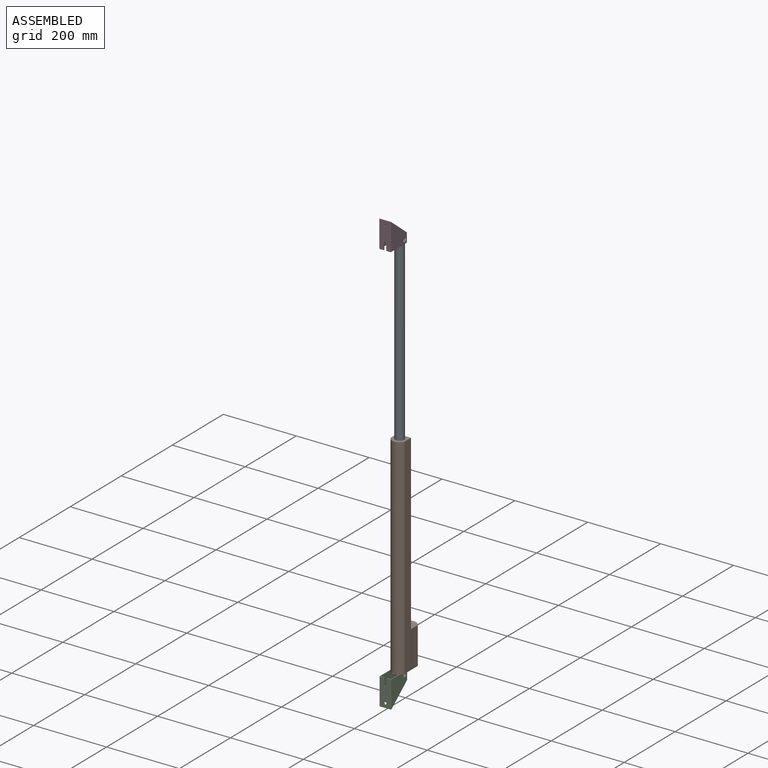
[diagram: assembled view]
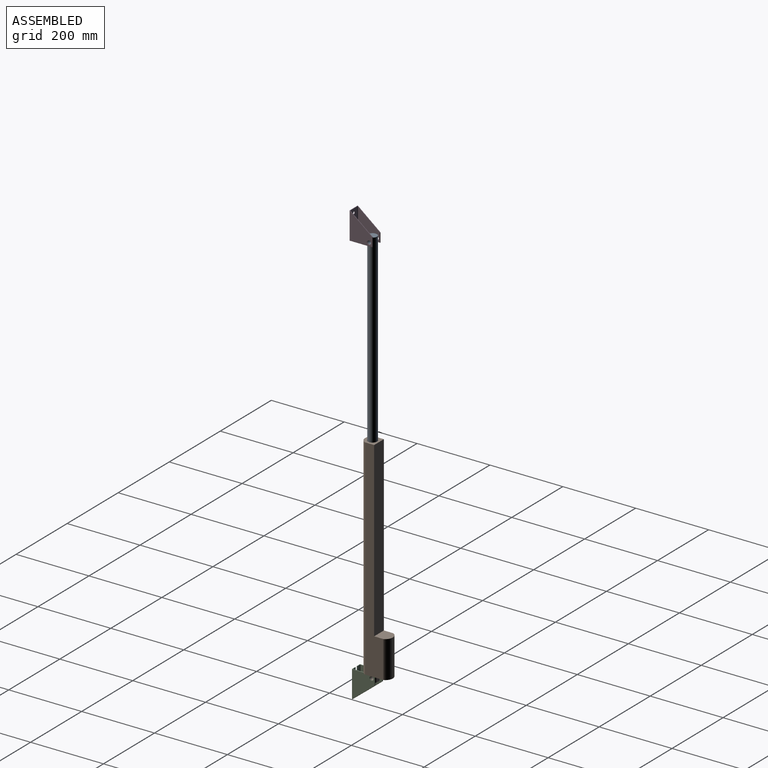
[diagram: assembled view, second angle]
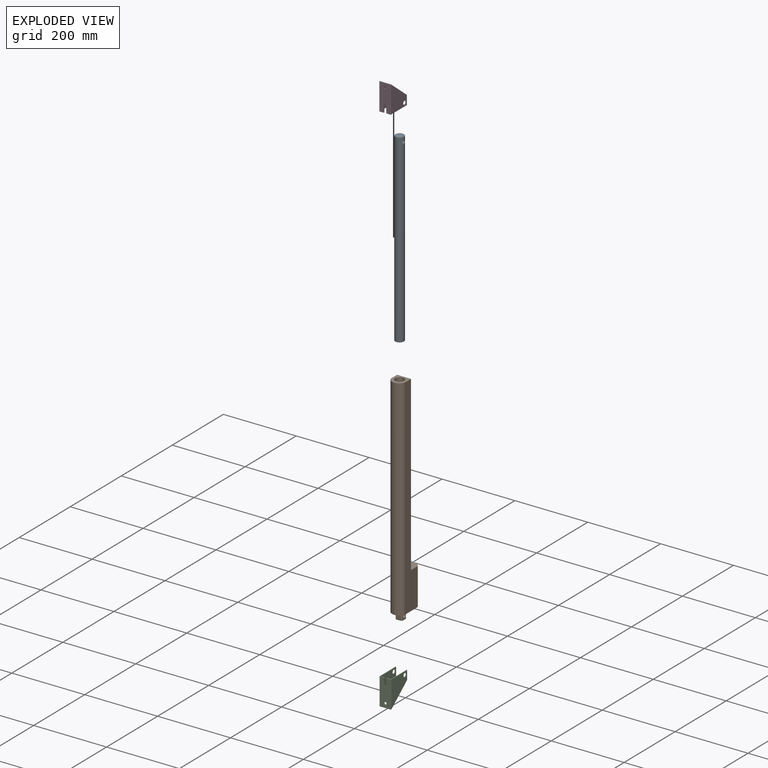
[diagram: exploded view]
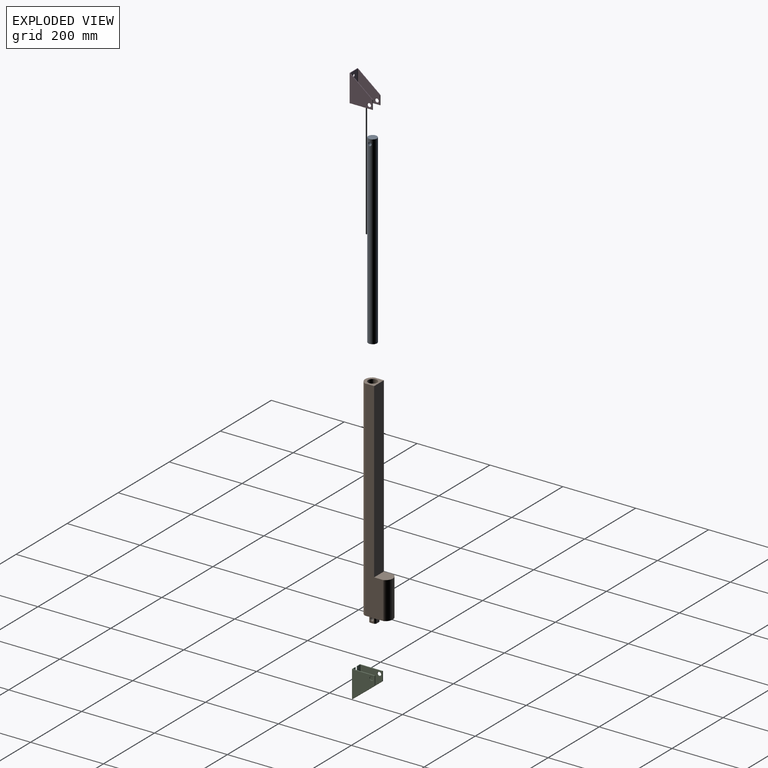
[diagram: exploded view, second angle]
ASSEMBLY  parts=4 mates=3
PART A: 4 faces, bbox 24x24x508 mm
  f0: cylinder r=12mm len=508mm, axis (0,0,-1), area 38156.9mm2, adj f1,f2,f3
  f1: plane 24x24mm, normal (0,0,1), area 452.4mm2, adj f0
  f2: plane 24x24mm, normal (0,0,-1), area 452.4mm2, adj f0
  f3: cylinder r=4.76mm len=24mm, axis (-1,0,0), area 689mm2, adj f0
PART B: 20 faces, bbox 38.1x76.2x595 mm
  f0: plane 38.1x38.1mm, normal (0,0,1), area 1317.4mm2, adj f2,f3,f5,f16
  f1: plane 76.2x38.1mm, normal (0,0,-1), area 2292.1mm2, adj f2,f3,f4,f5,f6,f7,f8,f9
  f2: cylinder r=20.64mm len=101.6mm, axis (0,0,-1), area 4931.6mm2, adj f0,f1,f3,f5
  f3: plane 575.95x50.8mm, normal (-1,0,0), area 17209.6mm2, adj f0,f1,f2,f4,f16,f17
  f4: cylinder r=20.64mm len=575.95mm, axis (0,0,-1), area 27956.1mm2, adj f1,f3,f5,f17
  f5: plane 575.95x50.8mm, normal (1,0,0), area 17209.6mm2, adj f0,f1,f2,f4,f16,f17
  f6: plane 19.05x3.18mm, normal (0.71,-0.71,0), area 85.5mm2, adj f1,f7,f13,f14
  f7: plane 19.05x12.7mm, normal (0,-1,0), area 241.9mm2, adj f1,f6,f8,f14
  f8: plane 19.05x3.18mm, normal (-0.71,-0.71,0), area 85.5mm2, adj f1,f7,f9,f14
  f9: plane 19.05x12.7mm, normal (-1,0,0), area 170.7mm2, adj f1,f8,f10,f14,f15
  f10: plane 19.05x3.18mm, normal (-0.71,0.71,0), area 85.5mm2, adj f1,f9,f11,f14
  f11: plane 19.05x12.7mm, normal (0,1,0), area 241.9mm2, adj f1,f10,f12,f14
  f12: plane 19.05x3.18mm, normal (0.71,0.71,0), area 85.5mm2, adj f1,f11,f13,f14
  f13: plane 19.05x12.7mm, normal (1,0,0), area 170.7mm2, adj f1,f6,f12,f14,f15
  f14: plane 19.05x19.05mm, normal (0,0,-1), area 342.7mm2, adj f6,f7,f8,f9,f10,f11,f12,f13
  f15: cylinder r=4.76mm len=19.05mm, axis (1,0,0), area 570mm2, adj f9,f13
  f16: plane 474.35x38.1mm, normal (0,1,0), area 18072.5mm2, adj f0,f3,f5,f17
  f17: plane 38.1x38.1mm, normal (0,0,1), area 826.5mm2, adj f3,f4,f5,f16,f18
  f18: cylinder r=12.5mm len=393.7mm, axis (0,0,1), area 30921.1mm2, adj f17,f19
  f19: plane 25x25mm, normal (0,0,1), area 490.9mm2, adj f18
PART C: 37 faces, bbox 31.8x63.5x75.3 mm
  f0: cylinder r=0.79mm len=11.91mm, axis (-1,0,0), area 27.7mm2, adj f2,f5,f10,f15,f17,f35
  f1: plane 1.59x1.59mm, normal (0,0,-1), area 0.5mm2, adj f16,f24,f25
  f2: plane 1.59x1.59mm, normal (0,0,-1), area 0.5mm2, adj f0,f13,f17
  f3: plane 1.59x1.59mm, normal (0,0.62,0.78), area 0.7mm2, adj f27,f31,f32
  f4: plane 1.59x1.59mm, normal (0,0.62,0.78), area 0.7mm2, adj f18,f26,f27
  f5: plane 73.75x30.16mm, normal (0,-1,0), area 2061.2mm2, adj f0,f16,f19,f23,f27,f33,f34,f35
  f6: plane 73.75x61.91mm, normal (1,0,0), area 2936.1mm2, adj f12,f13,f14,f18,f19
  f7: plane 73.75x61.91mm, normal (-1,0,0), area 2936.1mm2, adj f11,f23,f24,f29,f31
  f8: plane 72.48x60.33mm, normal (1,0,0), area 2820mm2, adj f11,f24,f29,f30,f31
  f9: plane 72.48x60.33mm, normal (-1,0,0), area 2820mm2, adj f12,f13,f14,f18,f21
  f10: plane 73.75x26.99mm, normal (0,1,0), area 1827mm2, adj f0,f16,f21,f27,f30,f33,f34,f35
  f11: torus R=5.56mm, axis (1,0,0), area 79.1mm2, adj f7,f8
  f12: torus R=5.56mm, axis (1,0,0), area 79.1mm2, adj f6,f9
  f13: cylinder r=0.79mm len=62.71mm, axis (0,-1,0), area 153.7mm2, adj f2,f6,f9,f14,f15,f17
  f14: cylinder r=0.79mm len=25.4mm, axis (0,0,-1), area 62.3mm2, adj f6,f9,f13,f18
  f15: sphere r=0.79mm, area 1mm2, adj f0,f13,f19
  f16: cylinder r=0.79mm len=11.91mm, axis (-1,0,0), area 27.7mm2, adj f1,f5,f10,f20,f25,f34
  f17: torus R=1.59mm, axis (0,0,1), area 2.1mm2, adj f0,f2,f13,f21
  f18: cylinder r=0.79mm len=62.71mm, axis (0,0.78,-0.62), area 195.8mm2, adj f4,f6,f9,f14,f22,f26
  f19: cylinder r=0.79mm len=73.75mm, axis (0,0,1), area 92mm2, adj f5,f6,f15,f22
  f20: sphere r=0.79mm, area 1mm2, adj f16,f23,f24
  f21: cylinder r=0.79mm len=73.75mm, axis (0,0,1), area 91.4mm2, adj f9,f10,f17,f26
  f22: sphere r=0.79mm, area 1.4mm2, adj f18,f19,f27
  f23: cylinder r=0.79mm len=73.75mm, axis (0,0,-1), area 92mm2, adj f5,f7,f20,f28
  f24: cylinder r=0.79mm len=62.71mm, axis (0,1,0), area 153.7mm2, adj f1,f7,f8,f20,f25,f29
  f25: torus R=1.59mm, axis (0,0,1), area 2.1mm2, adj f1,f16,f24,f30
  f26: bspline ~2.11x1.86mm, area 2.1mm2, adj f4,f18,f21,f27
  f27: cylinder r=0.79mm len=30.16mm, axis (-1,0,0), area 73mm2, adj f3,f4,f5,f10,f22,f26,f28,f32
  f28: sphere r=0.79mm, area 1.4mm2, adj f23,f27,f31
  f29: cylinder r=0.79mm len=25.4mm, axis (0,0,1), area 62.3mm2, adj f7,f8,f24,f31
  f30: cylinder r=0.79mm len=73.75mm, axis (0,0,1), area 91.4mm2, adj f8,f10,f25,f32
  f31: cylinder r=0.79mm len=62.71mm, axis (0,-0.78,0.62), area 195.8mm2, adj f3,f7,f8,f28,f29,f32
  f32: bspline ~1.89x1.59mm, area 2.1mm2, adj f3,f27,f30,f31
  f33: cylinder r=3.17mm len=6.35mm, axis (0,1,0), area 15.8mm2, adj f5,f10,f34,f35
  f34: plane 19.05x1.59mm, normal (1,0,0), area 30mm2, adj f5,f10,f16,f33
  f35: plane 19.05x1.59mm, normal (-1,0,0), area 30mm2, adj f0,f5,f10,f33
  f36: cylinder r=3.17mm len=6.35mm, axis (0,1,0), area 31.7mm2, adj f5,f10
PART D: same geometry as C
PLACE A t=(227.61,-62.12,428.14)mm
PLACE B rot(axis=(0.65,0.5,-0.57),0deg) t=(227.61,-44.66,-147.81)mm fixed
PLACE C rot(axis=(0,-1,0),180deg) t=(238.73,-111.33,-147.81)mm
PLACE D t=(209.61,-116.09,913.91)mm
MATE slider A.f0 <-> B.f18  axis (0,0,-1) through (227.61,-62.12,682.14)mm
MATE fastened A.f3 <-> D.f11  axis (-1,0,0) through (239.77,-62.12,923.44)mm
MATE fastened B.f15 <-> C.f11  axis (1,0,0) through (237.14,-57.36,-157.33)mm
